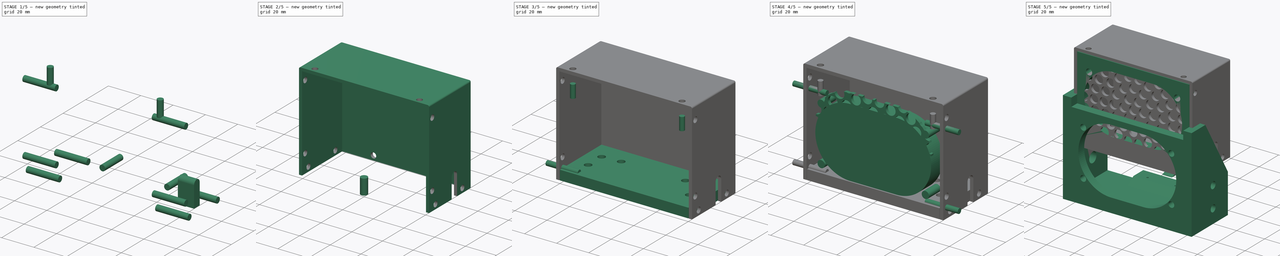
[diagram: build sequence overview — one tinted view per stage of 5, left to right]
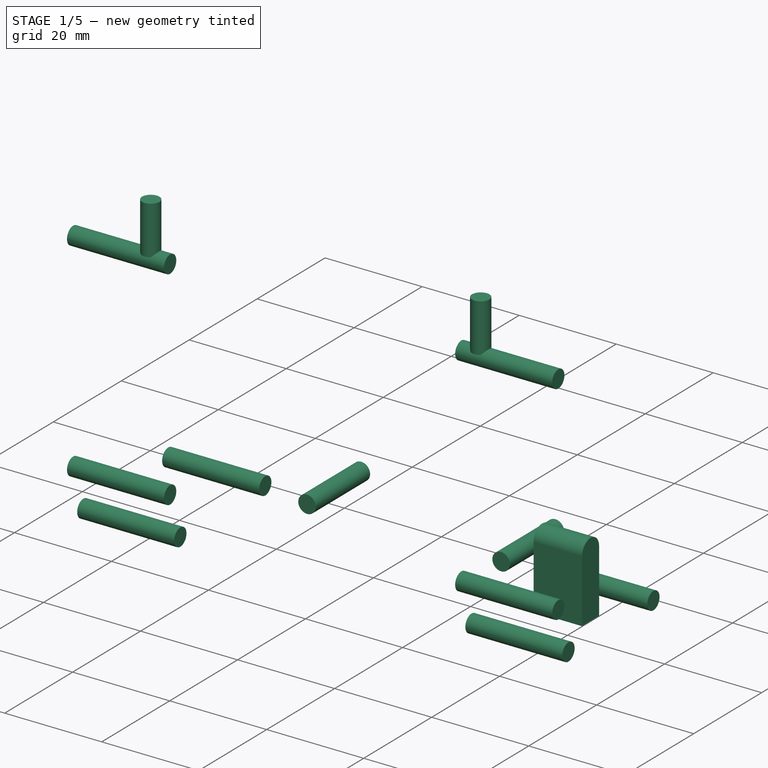
[diagram: stage 1 of 5 — iso view after this stage's code; geometry added in this stage tinted green]
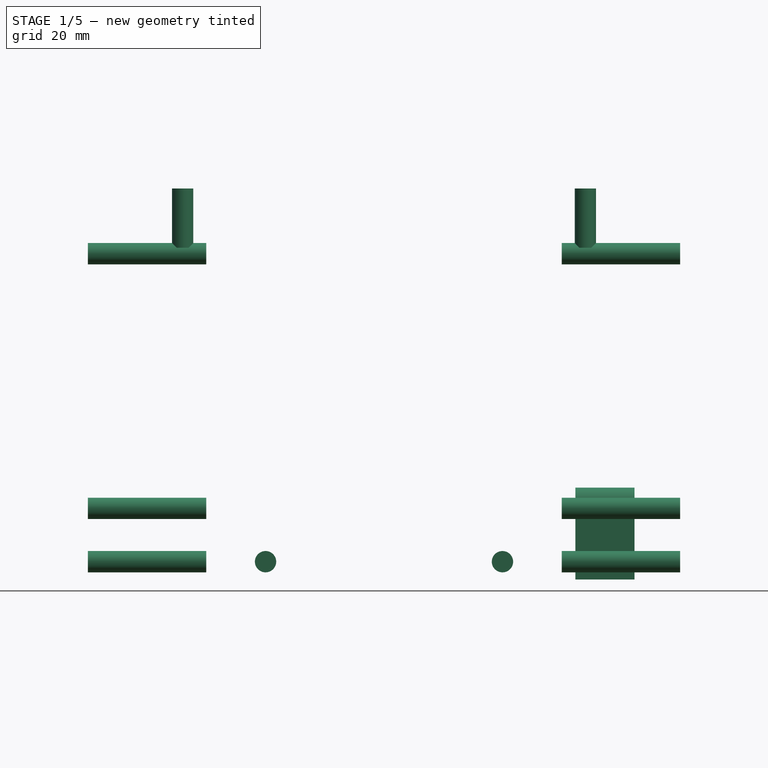
[diagram: stage 1 of 5 — front view after this stage's code; geometry added in this stage tinted green]
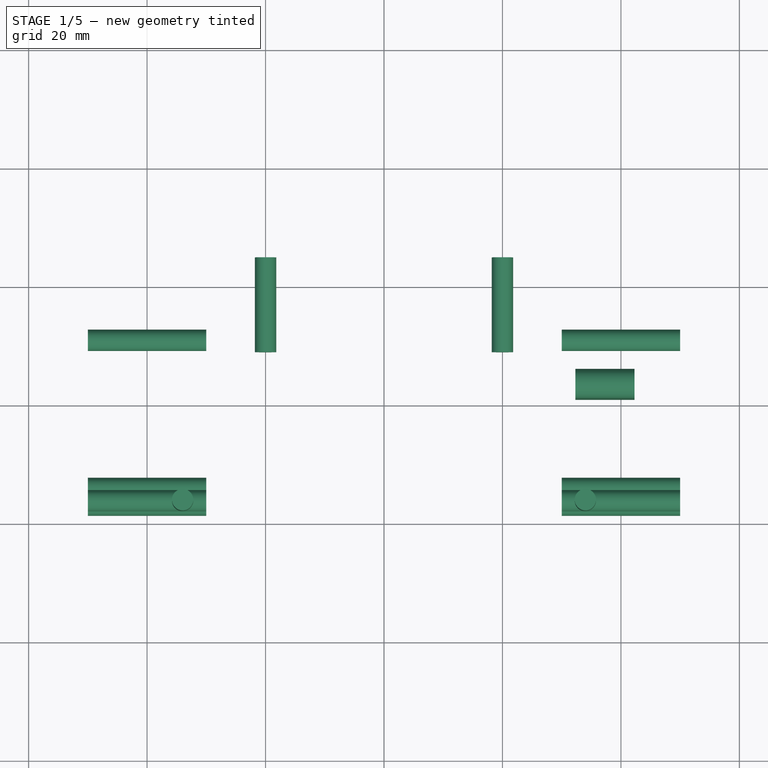
[diagram: stage 1 of 5 — top view after this stage's code; geometry added in this stage tinted green]
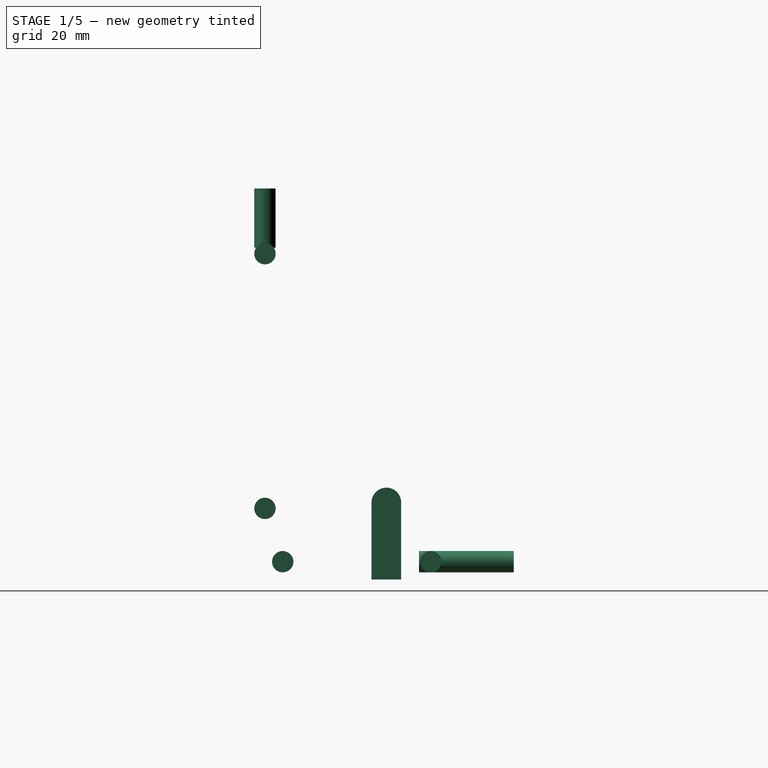
[diagram: stage 1 of 5 — right view after this stage's code; geometry added in this stage tinted green]
FCSTD DOCUMENT  (FreeCAD 0.19R)
Label: loud_speaker
License: All rights reserved
LicenseURL: http://en.wikipedia.org/wiki/All_rights_reserved
objects: Part::FeaturePython×14, Part::Cylinder×12, Sketcher::SketchObject×11, Part::Box×7, PartDesign::Pad×6, App::Part×5, Part::Cut×5, Part::MultiFuse×5, PartDesign::Body×4, PartDesign::Plane×3, PartDesign::AdditiveLoft×2, Spreadsheet::Sheet×1, Part::MultiCommon×1, Part::Feature×1, Part::Compound×1, Part::Fillet×1
note: 70 computed .brp shape members not serialized (recipe doc carries the construction recipe); baked Part::Feature solids carry a one-line shape summary decoded from their .brp

FEATURE [PartDesign::Body] Body002  label="speaker hole body"
  Group = -> [Sketch014,Pad004]
  Origin = -> Origin009
  Placement = pos=(0,0,27.5) rot=(0,0,1;0rad)
  Tip = -> Pad004
  expr: .Placement.Base.z = <<p>>.speaker_sz_y / 2
FEATURE [Part::Box] Box001  label="bottom side"
  AttacherType = Attacher::AttachEngine3D
  Height = 6
  Length = 80
  Placement = pos=(-40,0,0) rot=(0,0,1;0rad)
  Width = 37
  expr: .Placement.Base.x = -<<p>>.speaker_sz_x / 2
  expr: Height = <<p>>.speaker_wall
  expr: Width = <<p>>.under_speaker_sz_y
  expr: Length = <<p>>.speaker_sz_x
FEATURE [Part::Cylinder] Cylinder008  label="cover bottom side hole"
  Angle = 360
  AttacherType = Attacher::AttachEngine3D
  Height = 20
  Placement = pos=(-50,6,3) rot=(0,1,0;1.5708rad)
  Radius = 1.8
  expr: Radius = <<p>>.bolt_hole_r
  expr: .Placement.Base.z = <<p>>.speaker_wall / 2
  expr: .Placement.Base.x = -<<p>>.speaker_sz_x / 2 - Height / 2
FEATURE [Part::FeaturePython] Array008  label="cover bottom side holes array"  # Draft array (typed FeaturePython)
  Angle = 360
  ArrayType = 0
  Axis = (0,0,1)
  Base = -> Cylinder008
  Center = (0,0,0)
  Count = 4
  ExpandArray = false
  Fuse = false
  IntervalAxis = (0,0,0)
  IntervalX = (80,0,0)
  IntervalY = (0,25,0)
  IntervalZ = (0,0,100)
  NumberCircles = 3
  NumberPolar = 5
  NumberX = 2
  NumberY = 2
  NumberZ = 1
  PlacementList = 4 placements: [(-50,6,3),(-50,31,3),(30,6,3),(30,31,3)]
  RadialDistance = 50
  ScaleList = (4) [(1,1,1),(1,1,1),(1,1,1),(1,1,1)]
  Symmetry = 1
  TangentialDistance = 25
  expr: .IntervalX.x = <<p>>.speaker_sz_x
  expr: .IntervalY.y = <<bottom side>>.Width - 12mm
FEATURE [Part::Cylinder] Cylinder009  label="cover bottom hole"
  Angle = 360
  AttacherType = Attacher::AttachEngine3D
  Height = 16
  Placement = pos=(20,45,3) rot=(1,0,0;1.5708rad)
  Radius = 1.8
  expr: Radius = <<p>>.bolt_hole_r
  expr: .Placement.Base.y = <<bottom side>>.Width + Height / 2
  expr: .Placement.Base.z = <<p>>.speaker_wall / 2
FEATURE [Part::FeaturePython] Array009  label="cover bottom hole array"  # Draft array (typed FeaturePython)
  Angle = 360
  ArrayType = 0
  Axis = (0,0,1)
  Base = -> Cylinder009
  Center = (0,0,0)
  Count = 2
  ExpandArray = false
  Fuse = false
  IntervalAxis = (0,0,0)
  IntervalX = (40,0,0)
  IntervalY = (0,100,0)
  IntervalZ = (0,0,100)
  NumberCircles = 3
  NumberPolar = 5
  NumberX = 2
  NumberY = 1
  NumberZ = 1
  Placement = pos=(-40,0,0) rot=(0,0,1;0rad)
  PlacementList = 2 placements: [(20,45,3),(60,45,3)]
  RadialDistance = 50
  ScaleList = (2) [(1,1,1),(1,1,1)]
  Symmetry = 1
  TangentialDistance = 25
  expr: .Placement.Base.x = -<<p>>.speaker_sz_x / 2
  expr: .IntervalX.x = <<p>>.speaker_sz_x - 40mm
FEATURE [Part::Cylinder] Cylinder010  label="cover side hole"
  Angle = 360
  AttacherType = Attacher::AttachEngine3D
  Height = 20
  Placement = pos=(-50,3,6) rot=(0,1,0;1.5708rad)
  Radius = 1.8
  expr: Radius = <<p>>.bolt_hole_r
  expr: .Placement.Base.x = -<<p>>.speaker_sz_x / 2 - Height / 2
  expr: .Placement.Base.y = <<p>>.face_speaker_wall / 2
FEATURE [Part::FeaturePython] Array010  label="cover side holes array"  # Draft array (typed FeaturePython)
  Angle = 360
  ArrayType = 0
  Axis = (0,0,1)
  Base = -> Cylinder010
  Center = (0,0,0)
  Count = 4
  ExpandArray = false
  Fuse = false
  IntervalAxis = (0,0,0)
  IntervalX = (80,0,0)
  IntervalY = (0,100,0)
  IntervalZ = (0,0,43)
  NumberCircles = 3
  NumberPolar = 5
  NumberX = 2
  NumberY = 1
  NumberZ = 2
  Placement = pos=(0,0,6) rot=(0,0,1;0rad)
  PlacementList = 4 placements: [(-50,3,6),(-50,3,49),(30,3,6),(30,3,49)]
  RadialDistance = 50
  ScaleList = (4) [(1,1,1),(1,1,1),(1,1,1),(1,1,1)]
  Symmetry = 1
  TangentialDistance = 25
  expr: .IntervalX.x = <<p>>.speaker_sz_x
  expr: .IntervalZ.z = <<p>>.speaker_sz_y - 12mm
  expr: .Placement.Base.z = <<p>>.speaker_wall
FEATURE [Part::Cylinder] Cylinder011  label="cover vertical hole"
  Angle = 360
  AttacherType = Attacher::AttachEngine3D
  Height = 10
  Placement = pos=(6,0,50) rot=(0,0,1;0rad)
  Radius = 1.8
  expr: Radius = <<p>>.bolt_hole_r
  expr: .Placement.Base.z = <<p>>.speaker_sz_y - Height / 2
FEATURE [Part::FeaturePython] Array011  label="cover vertical hole array"  # Draft array (typed FeaturePython)
  Angle = 360
  ArrayType = 0
  Axis = (0,0,1)
  Base = -> Cylinder011
  Center = (0,0,0)
  Count = 2
  ExpandArray = false
  Fuse = false
  IntervalAxis = (0,0,0)
  IntervalX = (68,0,0)
  IntervalY = (0,100,0)
  IntervalZ = (0,0,100)
  NumberCircles = 3
  NumberPolar = 5
  NumberX = 2
  NumberY = 1
  NumberZ = 1
  Placement = pos=(-40,3,6) rot=(0,0,1;0rad)
  PlacementList = 2 placements: [(6,0,50),(74,0,50)]
  RadialDistance = 50
  ScaleList = (2) [(1,1,1),(1,1,1)]
  Symmetry = 1
  TangentialDistance = 25
  expr: .IntervalX.x = <<p>>.speaker_sz_x - 12mm
  expr: .Placement.Base.x = -<<p>>.speaker_sz_x / 2
  expr: .Placement.Base.y = <<p>>.face_speaker_wall / 2
  expr: .Placement.Base.z = <<p>>.speaker_wall
FEATURE [Sketcher::SketchObject] Sketch015
  FullyConstrained = true
  MapMode = 5
  Placement = pos=(42.3,0,0) rot=(0.57735,0.57735,0.57735;2.0944rad)
  expr: Constraints[7] = <<p>>.speaker_wall + 7mm
  sketch-geometry (4):
    g0: LineSegment StartX=26 StartY=0 StartZ=0 EndX=26 EndY=13 EndZ=0
    g1: LineSegment StartX=21 StartY=0 StartZ=0 EndX=21 EndY=13 EndZ=0
    g2: ArcOfCircle CenterX=23.5 CenterY=13 CenterZ=0 NormalX=0 NormalY=0 NormalZ=1 AngleXU=0 Radius=2.5 StartAngle=0 EndAngle=3.14159
    g3: LineSegment StartX=21 StartY=0 StartZ=0 EndX=26 EndY=0 EndZ=0
  constraints (11):
    c: PointOnObject(g0,g-1)
    c: Vertical(g0)
    c: PointOnObject(g1,g-1)
    c: Vertical(g1)
    c: Tangent(g2,g0) = -1.5708
    c: Tangent(g2,g1) = 1.5708
    c: DistanceX(g1,g0) = 5
    c: DistanceY(g0,g0) = 13
    c: Coincident(g3,g1)
    c: Coincident(g3,g0)
    c: DistanceX(g-1,g1) = 21
FEATURE [PartDesign::Pad] Pad005
  Direction = (1,1,1)
  Length = 10
  Length2 = 100
  Placement = pos=(42.3,0,0) rot=(0.57735,0.57735,0.57735;2.0944rad)
  Profile = -> Sketch015
  Reversed = true
  Type = 0
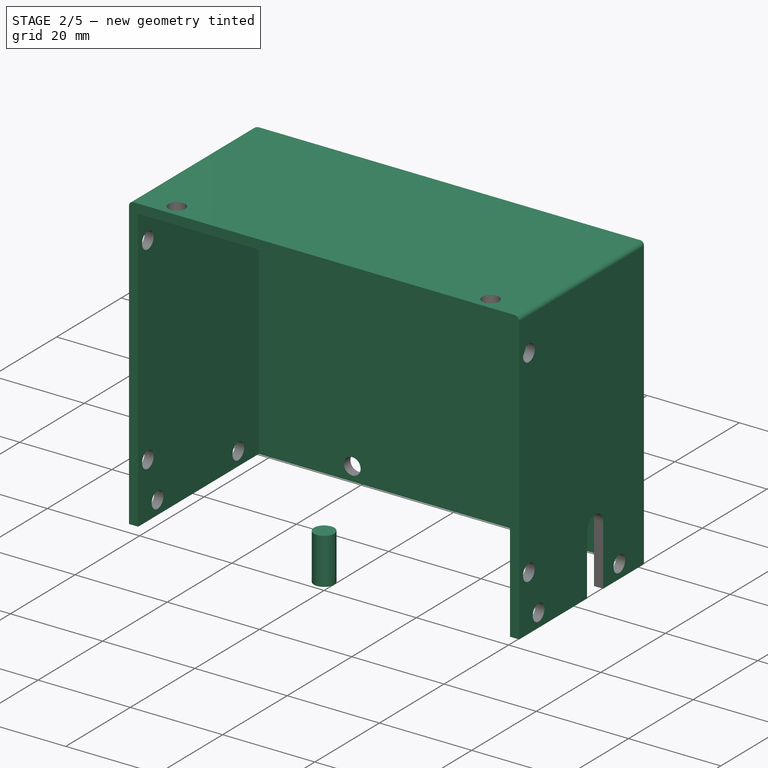
[diagram: stage 2 of 5 — iso view after this stage's code; geometry added in this stage tinted green]
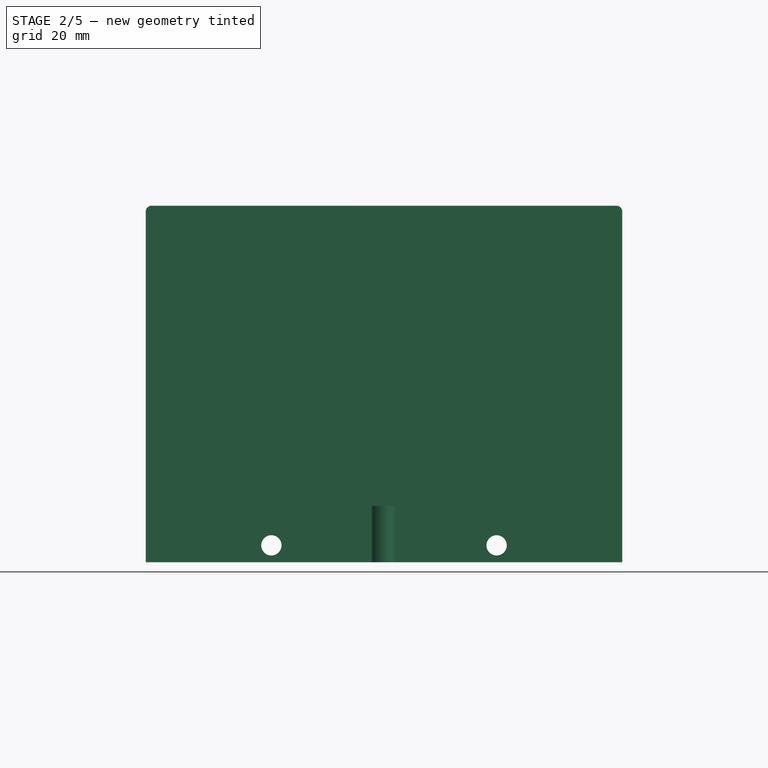
[diagram: stage 2 of 5 — front view after this stage's code; geometry added in this stage tinted green]
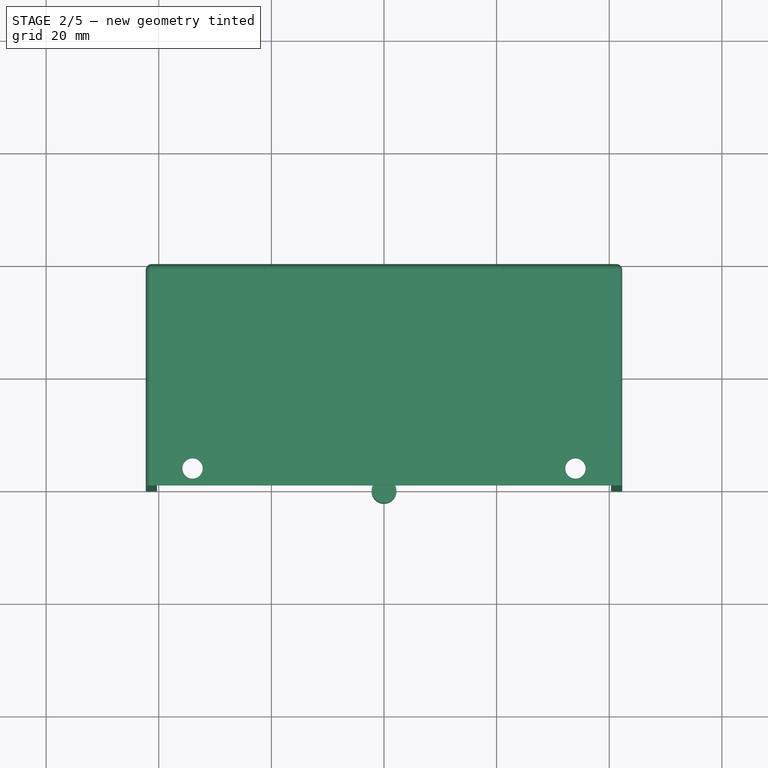
[diagram: stage 2 of 5 — top view after this stage's code; geometry added in this stage tinted green]
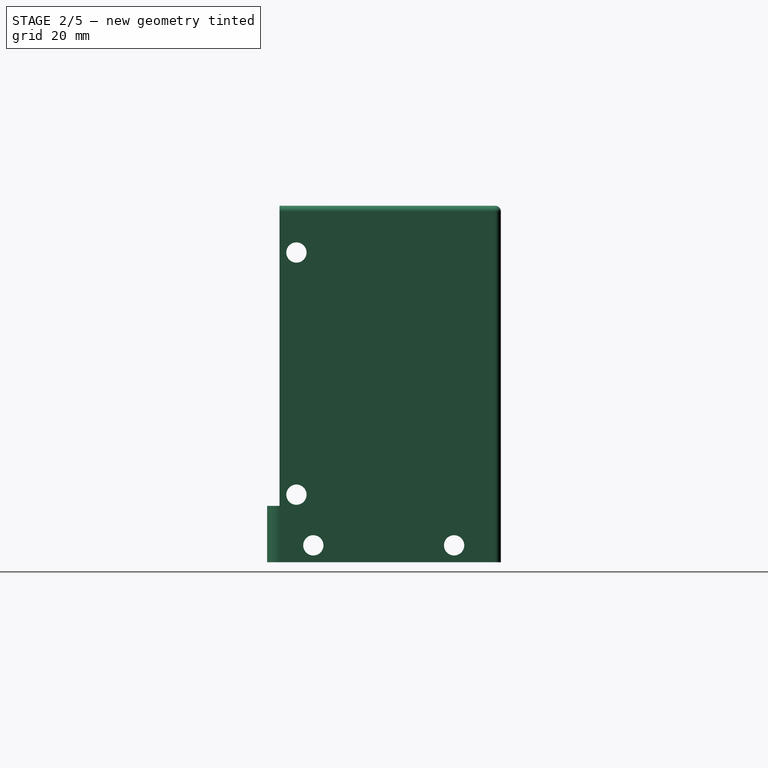
[diagram: stage 2 of 5 — right view after this stage's code; geometry added in this stage tinted green]
FEATURE [App::Part] Part001  label="ear"
  Group = -> [Cylinder,Sketch010,Sketch013,AdditiveLoft001,Cut]
  Origin = -> Origin005
FEATURE [App::Part] Part002  label="box part"
  Group = -> [Body]
  Origin = -> Origin006
FEATURE [Part::Box] Box  label="face wall"
  AttacherType = Attacher::AttachEngine3D
  Height = 55
  Length = 80
  Placement = pos=(-40,0,0) rot=(0,0,1;0rad)
  Width = 6
  expr: Length = <<p>>.speaker_sz_x
  expr: Width = <<p>>.face_speaker_wall
  expr: Height = <<p>>.speaker_sz_y
  expr: .Placement.Base.x = -<<p>>.speaker_sz_x / 2
FEATURE [Part::Cylinder] Cylinder007  label="bottom attachment hole"
  Angle = 360
  AttacherType = Attacher::AttachEngine3D
  Height = 10
  Radius = 2.2
  expr: Radius = <<p>>.inserter_hole_r
FEATURE [App::Part] Part003  label="simplified box part"
  Group = -> [Fusion001]
  Origin = -> Origin007
FEATURE [Part::Box] Box004  label="side wall cube"
  AttacherType = Attacher::AttachEngine3D
  Height = 61.3
  Length = 2
  Placement = pos=(-42.3,0,0) rot=(0,0,1;0rad)
  Width = 37.3
  expr: Height = <<p>>.speaker_sz_y + <<p>>.speaker_wall + <<p>>.cover_gap
  expr: Width = <<p>>.under_speaker_sz_y + <<p>>.cover_gap
  expr: Length = <<p>>.cover_wall
  expr: .Placement.Base.x = -<<face wall>>.Length / 2 - <<p>>.cover_wall - <<p>>.cover_gap
FEATURE [Part::Box] Box005  label="another side wall cube"
  AttacherType = Attacher::AttachEngine3D
  Height = 61.3
  Length = 2
  Placement = pos=(40.3,0,0) rot=(0,0,1;0rad)
  Width = 37.3
  expr: .Placement.Base.x = <<face wall>>.Length / 2 + <<p>>.cover_gap
  expr: Length = <<p>>.cover_wall
  expr: Width = <<p>>.under_speaker_sz_y + <<p>>.cover_gap
  expr: Height = <<p>>.speaker_sz_y + <<p>>.speaker_wall + <<p>>.cover_gap
FEATURE [Part::Box] Box006  label="top cover wall cube"
  AttacherType = Attacher::AttachEngine3D
  Height = 2
  Length = 84.6
  Placement = pos=(-42.3,0,61.3) rot=(0,0,1;0rad)
  Width = 37.3
  expr: Height = <<p>>.cover_wall
  expr: Width = <<p>>.under_speaker_sz_y + <<p>>.cover_gap
  expr: .Placement.Base.x = -Length / 2
  expr: .Placement.Base.z = <<p>>.speaker_sz_y + <<p>>.speaker_wall + <<p>>.cover_gap
  expr: Length = <<face wall>>.Length + 2 * (<<p>>.cover_wall + <<p>>.cover_gap)
FEATURE [Part::Box] Box007  label="back cover wall cube"
  AttacherType = Attacher::AttachEngine3D
  Height = 63.3
  Length = 84.6
  Placement = pos=(-42.3,37.3,0) rot=(0,0,1;0rad)
  Width = 2
  expr: Length = <<face wall>>.Length + 2 * (<<p>>.cover_wall + <<p>>.cover_gap)
  expr: .Placement.Base.x = -Length / 2
  expr: Width = <<p>>.cover_wall
  expr: Height = <<p>>.speaker_sz_y + <<p>>.speaker_wall + <<p>>.cover_wall + <<p>>.cover_gap
  expr: .Placement.Base.y = <<p>>.under_speaker_sz_y + <<p>>.cover_gap
FEATURE [Part::MultiFuse] Fusion003004  label="cover fusion"
  Shapes = -> [Box004,Box005,Box007,Box006]
FEATURE [PartDesign::Body] Body003  label="wire hole body"
  Group = -> [Sketch015,Pad005]
  Origin = -> Origin012
  Tip = -> Pad005
FEATURE [Part::MultiFuse] Fusion003005  label="cover extraction"
  Shapes = -> [Array008,Array009,Array010,Array011,Body003]
FEATURE [Part::Cut] Cut004  label="cover body"
  Base = -> Fusion003004
  Tool = -> Fusion003005
FEATURE [Part::Fillet] Fillet  label="cover body fillet"
  Base = -> Cut004
  Edges = 7 edges r=1: [Edge15,Edge17,Edge18,Edge39,Edge42,Edge43,Edge44]
FEATURE [App::Part] Part004  label="simplified cover part"
  Group = -> [Fillet]
  Origin = -> Origin010
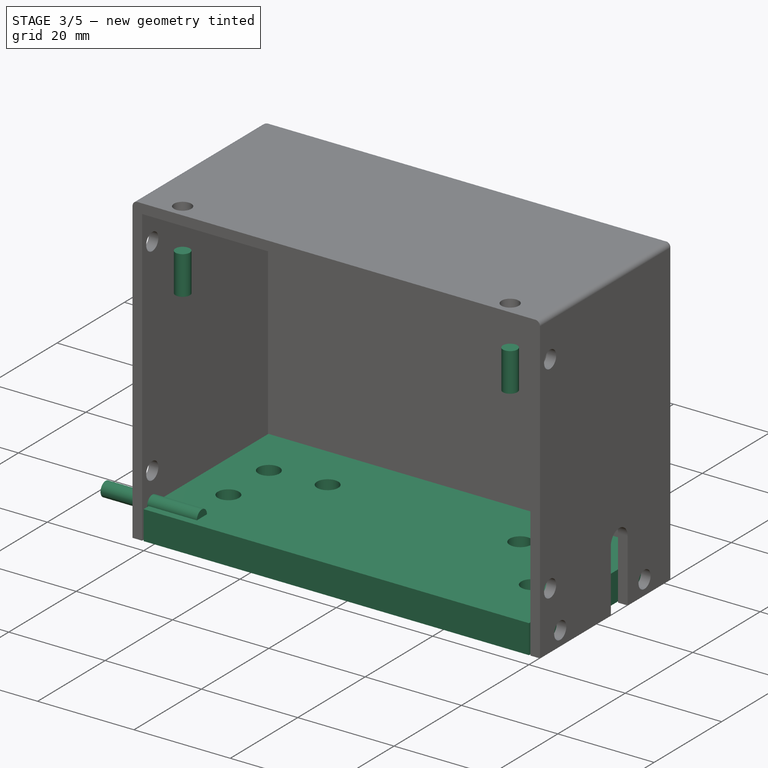
[diagram: stage 3 of 5 — iso view after this stage's code; geometry added in this stage tinted green]
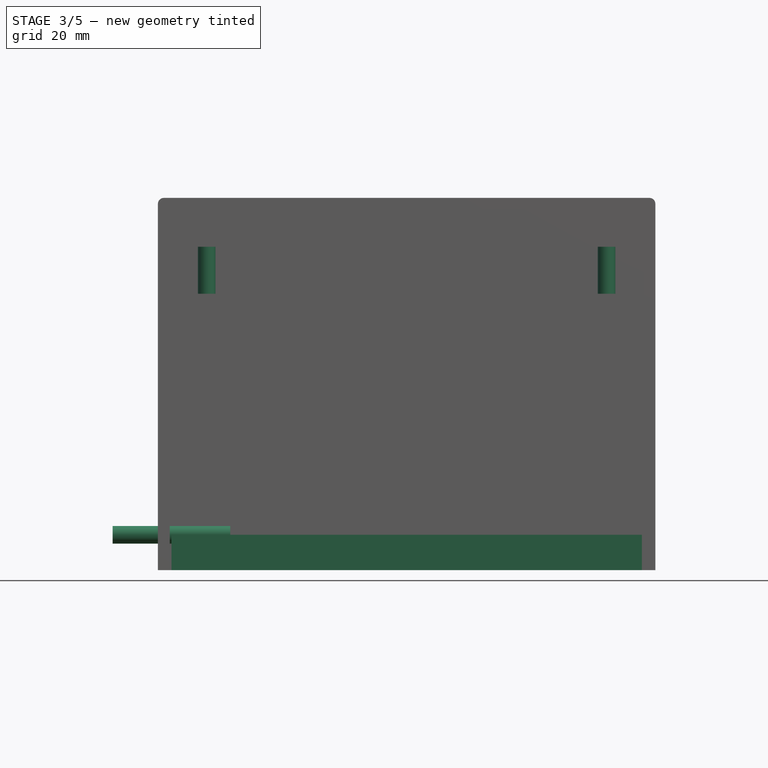
[diagram: stage 3 of 5 — front view after this stage's code; geometry added in this stage tinted green]
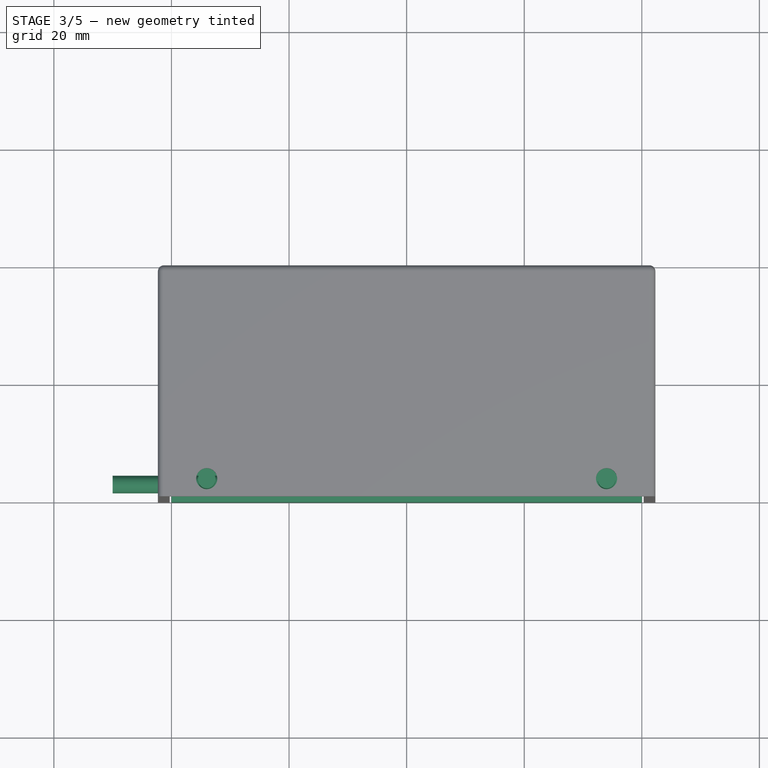
[diagram: stage 3 of 5 — top view after this stage's code; geometry added in this stage tinted green]
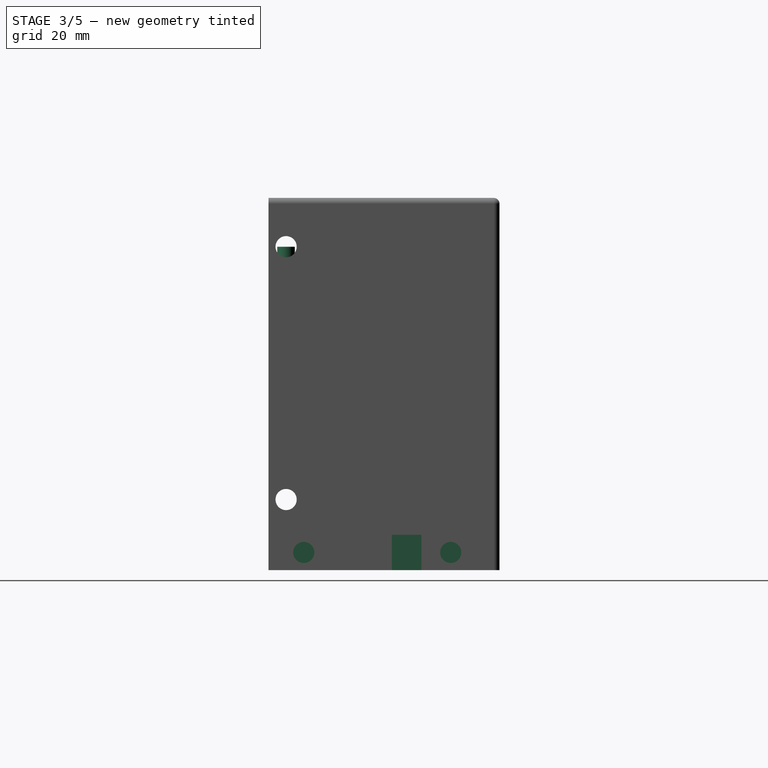
[diagram: stage 3 of 5 — right view after this stage's code; geometry added in this stage tinted green]
FEATURE [Part::Cylinder] Cylinder003  label="side hole"
  Angle = 360
  AttacherType = Attacher::AttachEngine3D
  Height = 20
  Placement = pos=(-50,3,6) rot=(0,1,0;1.5708rad)
  Radius = 1.5
  expr: .Placement.Base.y = <<p>>.face_speaker_wall / 2
  expr: .Placement.Base.x = -<<p>>.speaker_sz_x / 2 - Height / 2
  expr: Radius = <<p>>.side_hole_r
FEATURE [Part::Cylinder] Cylinder004  label="vertical hole"
  Angle = 360
  AttacherType = Attacher::AttachEngine3D
  Height = 8
  Placement = pos=(6,0,47) rot=(0,0,1;0rad)
  Radius = 1.5
  expr: .Placement.Base.z = <<p>>.speaker_sz_y - Height
  expr: Radius = <<p>>.side_hole_r
FEATURE [Part::FeaturePython] Array004  label="vertical hole array"  # Draft array (typed FeaturePython)
  Angle = 360
  ArrayType = 0
  Axis = (0,0,1)
  Base = -> Cylinder004
  Center = (0,0,0)
  Count = 2
  ExpandArray = false
  Fuse = false
  IntervalAxis = (0,0,0)
  IntervalX = (68,0,0)
  IntervalY = (0,100,0)
  IntervalZ = (0,0,100)
  NumberCircles = 3
  NumberPolar = 5
  NumberX = 2
  NumberY = 1
  NumberZ = 1
  Placement = pos=(-40,3,0) rot=(0,0,1;0rad)
  PlacementList = 2 placements: [(6,0,47),(74,0,47)]
  RadialDistance = 50
  ScaleList = (2) [(1,1,1),(1,1,1)]
  Symmetry = 1
  TangentialDistance = 25
  expr: .Placement.Base.y = <<p>>.face_speaker_wall / 2
  expr: .Placement.Base.x = -<<p>>.speaker_sz_x / 2
  expr: .IntervalX.x = <<p>>.speaker_sz_x - 12mm
FEATURE [Part::Feature] Fusion003001  label="amplifier holder"
  Placement = pos=(14,17,4) rot=(0,0,1;1.5708rad)
  shape: bbox 50 x 17.5 x 7.6 mm, 64 faces (baked)
  expr: .Placement.Base.z = <<p>>.speaker_wall - 2mm
FEATURE [Part::Cylinder] Cylinder005  label="bottom side hole"
  Angle = 360
  AttacherType = Attacher::AttachEngine3D
  Height = 20
  Placement = pos=(-50,6,3) rot=(0,1,0;1.5708rad)
  Radius = 1.5
  expr: .Placement.Base.x = -<<p>>.speaker_sz_x / 2 - Height / 2
  expr: .Placement.Base.z = <<p>>.speaker_wall / 2
  expr: Radius = <<p>>.side_hole_r
FEATURE [Part::FeaturePython] Array005  label="bottom side holes array"  # Draft array (typed FeaturePython)
  Angle = 360
  ArrayType = 0
  Axis = (0,0,1)
  Base = -> Cylinder005
  Center = (0,0,0)
  Count = 4
  ExpandArray = false
  Fuse = false
  IntervalAxis = (0,0,0)
  IntervalX = (80,0,0)
  IntervalY = (0,25,0)
  IntervalZ = (0,0,100)
  NumberCircles = 3
  NumberPolar = 5
  NumberX = 2
  NumberY = 2
  NumberZ = 1
  PlacementList = 4 placements: [(-50,6,3),(-50,31,3),(30,6,3),(30,31,3)]
  RadialDistance = 50
  ScaleList = (4) [(1,1,1),(1,1,1),(1,1,1),(1,1,1)]
  Symmetry = 1
  TangentialDistance = 25
  expr: .IntervalY.y = <<bottom side>>.Width - 12mm
  expr: .IntervalX.x = <<p>>.speaker_sz_x
FEATURE [Part::Cylinder] Cylinder006  label="bottom hole"
  Angle = 360
  AttacherType = Attacher::AttachEngine3D
  Height = 16
  Placement = pos=(20,45,3) rot=(1,0,0;1.5708rad)
  Radius = 1.5
  expr: .Placement.Base.z = <<p>>.speaker_wall / 2
  expr: .Placement.Base.y = <<bottom side>>.Width + Height / 2
  expr: Radius = <<p>>.side_hole_r
FEATURE [Part::FeaturePython] Array006  label="bottom hole array"  # Draft array (typed FeaturePython)
  Angle = 360
  ArrayType = 0
  Axis = (0,0,1)
  Base = -> Cylinder006
  Center = (0,0,0)
  Count = 2
  ExpandArray = false
  Fuse = false
  IntervalAxis = (0,0,0)
  IntervalX = (40,0,0)
  IntervalY = (0,100,0)
  IntervalZ = (0,0,100)
  NumberCircles = 3
  NumberPolar = 5
  NumberX = 2
  NumberY = 1
  NumberZ = 1
  Placement = pos=(-40,0,0) rot=(0,0,1;0rad)
  PlacementList = 2 placements: [(20,45,3),(60,45,3)]
  RadialDistance = 50
  ScaleList = (2) [(1,1,1),(1,1,1)]
  Symmetry = 1
  TangentialDistance = 25
  expr: .IntervalX.x = <<p>>.speaker_sz_x - 40mm
  expr: .Placement.Base.x = -<<p>>.speaker_sz_x / 2
FEATURE [Part::FeaturePython] Array007  label="bottom attachment hole array"  # Draft array (typed FeaturePython)
  Angle = 360
  ArrayType = 0
  Axis = (0,0,1)
  Base = -> Cylinder007
  Center = (0,0,0)
  Count = 4
  ExpandArray = false
  Fuse = false
  IntervalAxis = (0,0,0)
  IntervalX = (63,0,0)
  IntervalY = (0,12,0)
  IntervalZ = (0,0,100)
  NumberCircles = 3
  NumberPolar = 5
  NumberX = 2
  NumberY = 2
  NumberZ = 1
  Placement = pos=(-31.5,13,0) rot=(0,0,1;0rad)
  PlacementList = 4 placements: [(0,0,0),(0,12,0),(63,0,0),(63,12,0)]
  RadialDistance = 50
  ScaleList = (4) [(1,1,1),(1,1,1),(1,1,1),(1,1,1)]
  Symmetry = 1
  TangentialDistance = 25
  expr: .Placement.Base.x = -.IntervalX.x / 2
  expr: .IntervalY.y = <<p>>.attachment_step_y
  expr: .IntervalX.x = <<p>>.attachment_step_z * 9
FEATURE [Part::FeaturePython] Point  # WARN: FeaturePython — macro-defined, semantics opaque (R4)
  Placement = pos=(-20,26,0) rot=(0,0,1;0rad)
  X = -20
  Y = 26
  Z = 0
FEATURE [Part::FeaturePython] Point001  # WARN: FeaturePython — macro-defined, semantics opaque (R4)
  Placement = pos=(20,26,0) rot=(0,0,1;0rad)
  X = 20
  Y = 26
  Z = 0
FEATURE [Part::Compound] Compound  label="amplifier point compound"
  Links = -> [Point,Point001]
FEATURE [Part::FeaturePython] PointArray  label="amplifier hole array"  # Draft array (typed FeaturePython)
  Base = -> Cylinder007
  Count = 0
  PointObject = -> Compound
FEATURE [Part::MultiFuse] Fusion003003  label="bottom extract fusion"
  Shapes = -> [Array006,Array005,Array007,PointArray]
FEATURE [Part::Cut] Cut003  label="bottom cut"
  Base = -> Box001
  Tool = -> Fusion003003
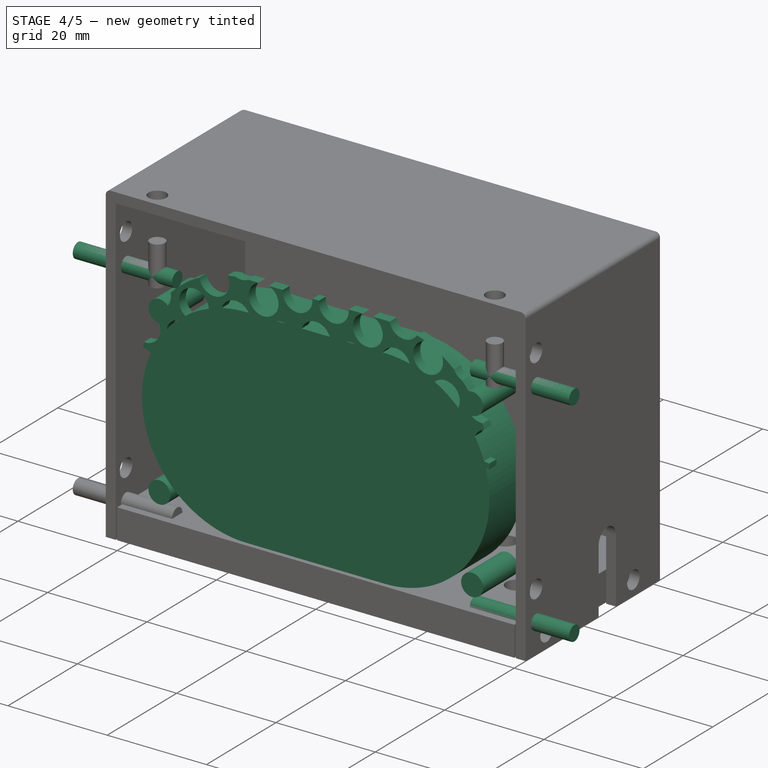
[diagram: stage 4 of 5 — iso view after this stage's code; geometry added in this stage tinted green]
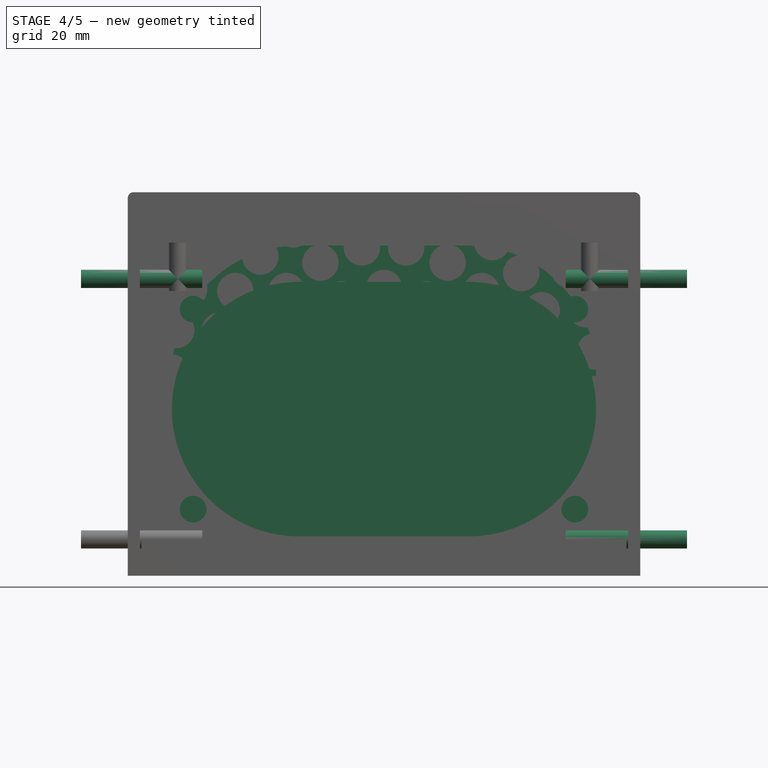
[diagram: stage 4 of 5 — front view after this stage's code; geometry added in this stage tinted green]
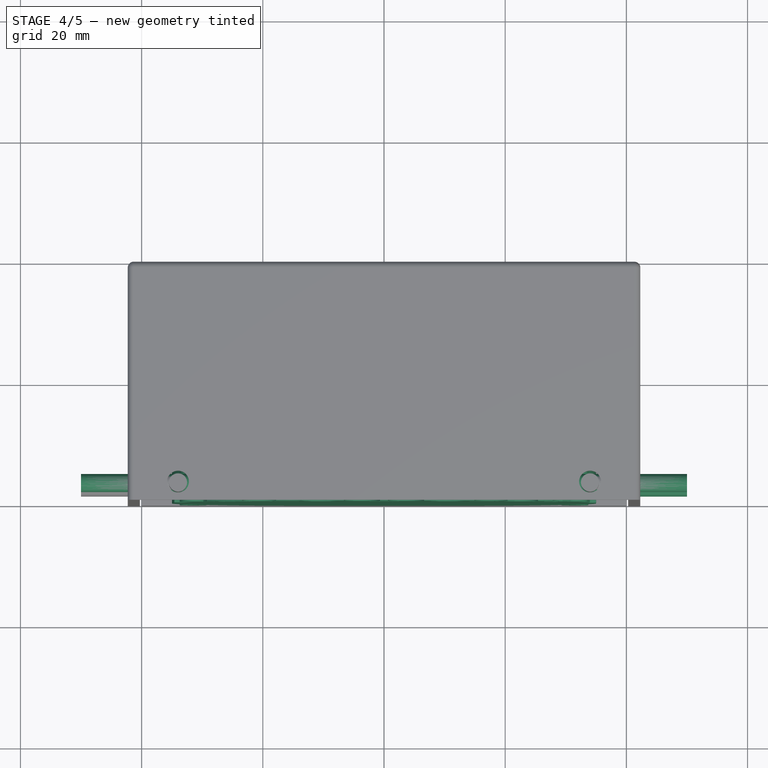
[diagram: stage 4 of 5 — top view after this stage's code; geometry added in this stage tinted green]
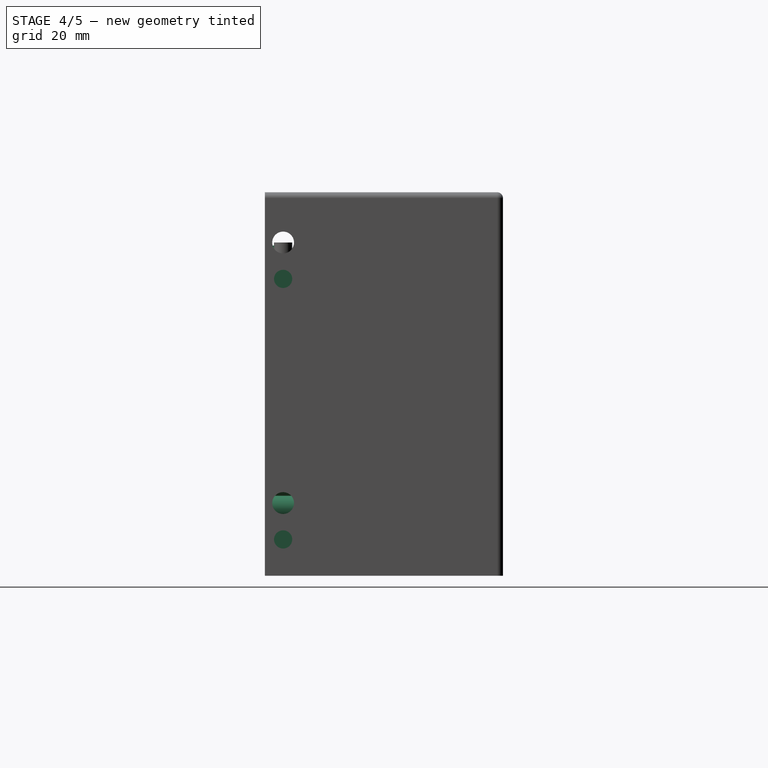
[diagram: stage 4 of 5 — right view after this stage's code; geometry added in this stage tinted green]
FEATURE [Part::Cylinder] Cylinder001  label="face wall hole"
  Angle = 360
  AttacherType = Attacher::AttachEngine3D
  Height = 10
  Placement = pos=(0,0,0) rot=(-1,0,0;1.5708rad)
  Radius = 2.2
  expr: Radius = <<p>>.inserter_hole_r
FEATURE [Part::FeaturePython] Array  label="face wall hole array"  # Draft array (typed FeaturePython)
  Angle = 360
  ArrayType = 0
  Axis = (0,0,1)
  Base = -> Cylinder001
  Center = (0,0,0)
  Count = 4
  ExpandArray = false
  Fuse = false
  IntervalAxis = (0,0,0)
  IntervalX = (63,0,0)
  IntervalY = (0,100,0)
  IntervalZ = (0,0,33)
  NumberCircles = 3
  NumberPolar = 5
  NumberX = 2
  NumberY = 1
  NumberZ = 2
  Placement = pos=(-31.5,0,11) rot=(0,0,1;0rad)
  PlacementList = 4 placements: [(0,0,0),(0,0,33),(63,0,0),(63,0,33)]
  RadialDistance = 50
  ScaleList = (4) [(1,1,1),(1,1,1),(1,1,1),(1,1,1)]
  Symmetry = 1
  TangentialDistance = 25
  expr: .IntervalX.x = <<p>>.speaker_hole_dist_x
  expr: .IntervalZ.z = <<p>>.speaker_hole_dist_y
  expr: .Placement.Base.x = -<<p>>.speaker_hole_dist_x / 2
  expr: .Placement.Base.z = (<<p>>.speaker_sz_y - <<p>>.speaker_hole_dist_y) / 2
FEATURE [Sketcher::SketchObject] Sketch014  label="face speaker hole"
  FullyConstrained = false
  MapMode = 5
  Placement = pos=(0,0,0) rot=(1,0,0;1.5708rad)
  Support = -> [XZ_Plane009]
  sketch-geometry (5):
    g0: ArcOfCircle CenterX=14 CenterY=2e-16 CenterZ=0 NormalX=0 NormalY=0 NormalZ=1 AngleXU=0 Radius=21 StartAngle=4.71239 EndAngle=7.85398
    g1: ArcOfCircle CenterX=-14 CenterY=2.7167e-12 CenterZ=0 NormalX=0 NormalY=0 NormalZ=1 AngleXU=0 Radius=21 StartAngle=1.5708 EndAngle=4.71239
    g2: LineSegment StartX=14 StartY=21 StartZ=0 EndX=-14 EndY=21 EndZ=0
    g3: LineSegment StartX=14 StartY=-21 StartZ=0 EndX=-14 EndY=-21 EndZ=0
    g4: GeomPoint X=-35 Y=0 Z=0
  constraints (8):
    c: Tangent(g0,g3) = 1.5708
    c: Tangent(g0,g2) = -1.5708
    c: Tangent(g2,g1) = -1.5708
    c: Tangent(g3,g1) = 1.5708
    c: Symmetric(g1,g0,g-2)
    c: Symmetric(g0,g0,g-1)
    c: PointOnObject(g4,g1)
    c: DistanceY(g-1,g4) = 0
FEATURE [PartDesign::Pad] Pad004
  Direction = (1,1,1)
  Length = 10
  Length2 = 100
  Placement = pos=(0,0,0) rot=(1,0,0;1.5708rad)
  Profile = -> Sketch014
  Reversed = true
  Type = 0
FEATURE [Part::Box] Box003  label="speaker mesh"
  AttacherType = Attacher::AttachEngine3D
  Height = 55
  Length = 80
  Placement = pos=(-40,0,0) rot=(0,0,1;0rad)
  Width = 2
  expr: .Placement.Base.x = -<<p>>.speaker_sz_x / 2
  expr: Height = <<p>>.speaker_sz_y
  expr: Width = <<p>>.speaker_mesh_wall
  expr: Length = <<p>>.speaker_sz_x
FEATURE [Part::Cylinder] Cylinder002  label="mesh hole"
  Angle = 360
  AttacherType = Attacher::AttachEngine3D
  Height = 10
  Radius = 3
FEATURE [Part::FeaturePython] Array002  label="mesh hole array"  # Draft array (typed FeaturePython)
  Angle = 360
  ArrayType = 2
  Axis = (0,0,1)
  Base = -> Cylinder002
  Center = (0,0,0)
  Count = 93
  ExpandArray = false
  Fuse = false
  IntervalAxis = (0,0,0)
  IntervalX = (50,0,0)
  IntervalY = (0,50,0)
  IntervalZ = (0,0,50)
  LinkTransform = true
  NumberCircles = 6
  NumberPolar = 5
  NumberX = 2
  NumberY = 2
  NumberZ = 1
  Placement = pos=(0,0,27.5) rot=(1,0,0;-1.5708rad)
  PlacementList = 93 placements: [(0,0,0),(-7,0,0),(-3.5,-6.06218,0),(3.5,-6.06218,0),(7,-8.57253e-16,0),(3.5,6.06218,0),(-3.5,6.06218,0),(-14,0,0),(-12.1244,-7,0),(-7,-12.1244,0),(-3.55271e-15,-14,0),(7,-12.1244,0),(12.1244,-7,0),(14,-1.71451e-15,0),(12.1244,7,0),(7,12.1244,0),(3.55271e-15,14,0),(-7,12.1244,0),(-12.1244,7,0),(-21,0,0),(-19.7335,-7.18242,0),(-16.0869,-13.4985,0),(-10.5,-18.1865,0),(-3.64661,-20.681,0),+69 more]
  RadialDistance = 7
  ScaleList = (93) [(1,1,1),(1,1,1),(1,1,1),(1,1,1),(1,1,1),(1,1,1),(1,1,1),(1,1,1),(1,1,1),(1,1,1),(1,1,1),(1,1,1),(1,1,1),(1,1,1),(1,1,1),(1,1,1),(1,1,1),(1,1,1),+75 more]
  Symmetry = 1
  TangentialDistance = 7
  expr: .Placement.Base.z = <<p>>.speaker_sz_y / 2
FEATURE [Part::Cut] Cut002  label="speaker cut"
  Base = -> Box003
  Tool = -> Array002
FEATURE [Part::MultiCommon] Common  label="speaker mesh intersection"
  Placement = pos=(0,0,6) rot=(0,0,1;0rad)
  Shapes = -> [Body002,Cut002]
  expr: .Placement.Base.z = <<p>>.speaker_wall
FEATURE [Part::FeaturePython] Array003  label="side holes array"  # Draft array (typed FeaturePython)
  Angle = 360
  ArrayType = 0
  Axis = (0,0,1)
  Base = -> Cylinder003
  Center = (0,0,0)
  Count = 4
  ExpandArray = false
  Fuse = false
  IntervalAxis = (0,0,0)
  IntervalX = (80,0,0)
  IntervalY = (0,100,0)
  IntervalZ = (0,0,43)
  NumberCircles = 3
  NumberPolar = 5
  NumberX = 2
  NumberY = 1
  NumberZ = 2
  PlacementList = 4 placements: [(-50,3,6),(-50,3,49),(30,3,6),(30,3,49)]
  RadialDistance = 50
  ScaleList = (4) [(1,1,1),(1,1,1),(1,1,1),(1,1,1)]
  Symmetry = 1
  TangentialDistance = 25
  expr: .IntervalZ.z = <<p>>.speaker_sz_y - 12mm
  expr: .IntervalX.x = <<p>>.speaker_sz_x
FEATURE [Part::MultiFuse] Fusion  label="speaker wall extract fusion"
  Shapes = -> [Body002,Array,Array003,Array004]
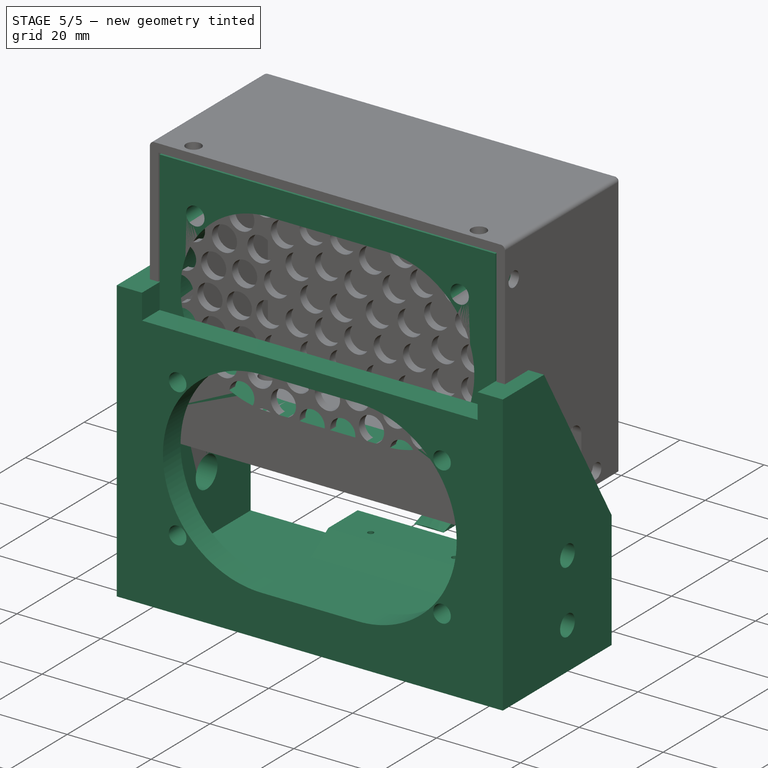
[diagram: stage 5 of 5 — iso view after this stage's code; geometry added in this stage tinted green]
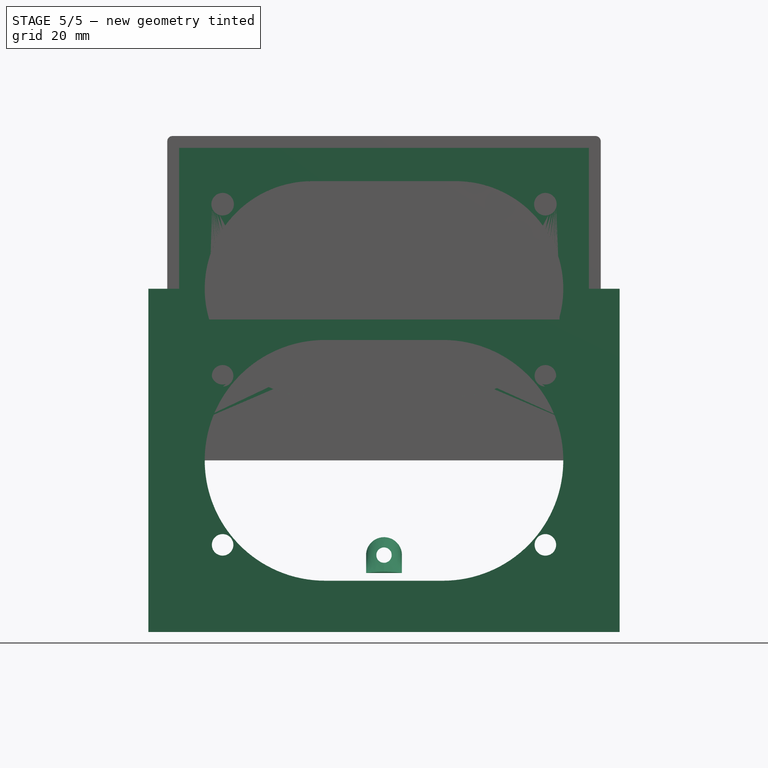
[diagram: stage 5 of 5 — front view after this stage's code; geometry added in this stage tinted green]
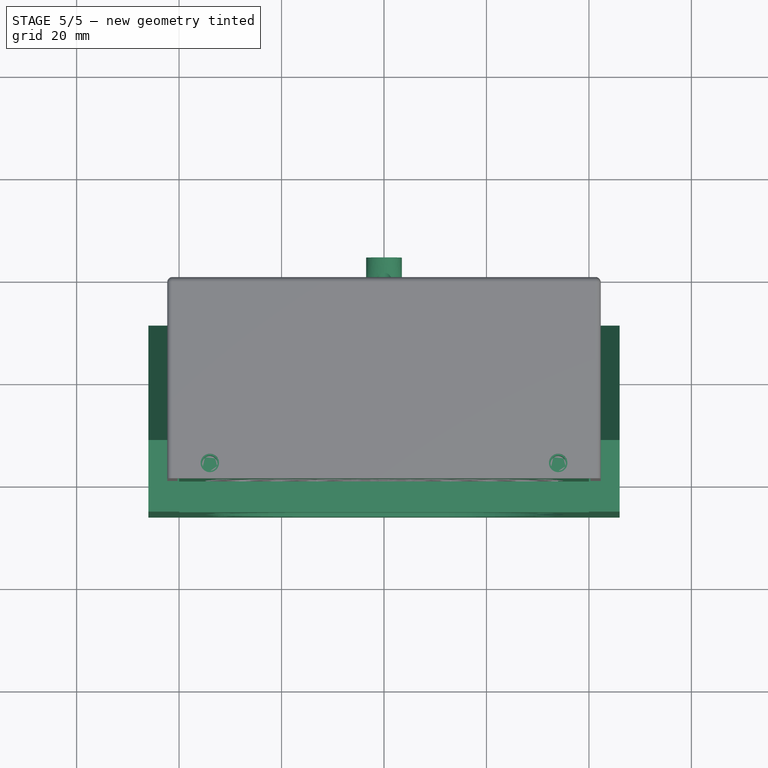
[diagram: stage 5 of 5 — top view after this stage's code; geometry added in this stage tinted green]
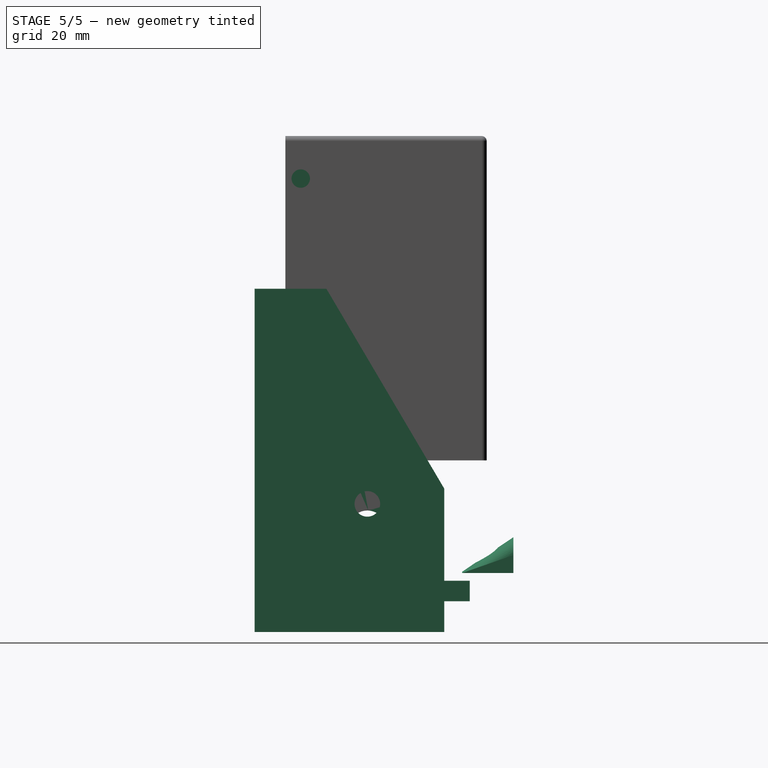
[diagram: stage 5 of 5 — right view after this stage's code; geometry added in this stage tinted green]
FEATURE [Sketcher::SketchObject] Sketch  label="face speaker wall"
  FullyConstrained = true
  MapMode = 5
  Placement = pos=(0,0,0) rot=(1,0,0;1.5708rad)
  Support = -> [XZ_Plane]
  expr: Constraints[19] = <<p>>.speaker_sz_y
  expr: Constraints[18] = <<p>>.speaker_sz_x
  expr: Constraints[13] = <<p>>.speaker_hole_dist_y
  expr: Constraints[12] = <<p>>.speaker_hole_dist_x
  expr: Constraints[11] = <<p>>.speaker_hole_dist_y
  expr: Constraints[10] = <<p>>.speaker_hole_dist_x
  sketch-geometry (13):
    g0: LineSegment StartX=-40 StartY=27.5 StartZ=0 EndX=40 EndY=27.5 EndZ=0
    g1: LineSegment StartX=40 StartY=27.5 StartZ=0 EndX=40 EndY=-27.5 EndZ=0
    g2: LineSegment StartX=40 StartY=-27.5 StartZ=0 EndX=-40 EndY=-27.5 EndZ=0
    g3: LineSegment StartX=-40 StartY=-27.5 StartZ=0 EndX=-40 EndY=27.5 EndZ=0
    g4: Circle CenterX=-31.5 CenterY=16.5 CenterZ=0 NormalX=0 NormalY=0 NormalZ=1 AngleXU=0 Radius=2.1
    g5: Circle CenterX=31.5 CenterY=16.5 CenterZ=0 NormalX=0 NormalY=0 NormalZ=1 AngleXU=0 Radius=2.1
    g6: Circle CenterX=31.5 CenterY=-16.5 CenterZ=0 NormalX=0 NormalY=0 NormalZ=1 AngleXU=0 Radius=2.1
    g7: Circle CenterX=-31.5 CenterY=-16.5 CenterZ=0 NormalX=0 NormalY=0 NormalZ=1 AngleXU=0 Radius=2.1
    g8: ArcOfCircle CenterX=11.5 CenterY=-1.3e-15 CenterZ=0 NormalX=0 NormalY=0 NormalZ=1 AngleXU=0 Radius=23.5 StartAngle=4.71239 EndAngle=7.85398
    g9: ArcOfCircle CenterX=-11.5 CenterY=-2.98e-14 CenterZ=0 NormalX=0 NormalY=0 NormalZ=1 AngleXU=0 Radius=23.5 StartAngle=1.5708 EndAngle=4.71239
    g10: LineSegment StartX=11.5 StartY=23.5 StartZ=0 EndX=-11.5 EndY=23.5 EndZ=0
    g11: LineSegment StartX=11.5 StartY=-23.5 StartZ=0 EndX=-11.5 EndY=-23.5 EndZ=0
    g12: GeomPoint X=-35 Y=0 Z=0
  constraints (30):
    c: Coincident(g0,g1)
    c: Coincident(g1,g2)
    c: Coincident(g2,g3)
    c: Coincident(g3,g0)
    c: Horizontal(g2)
    c: Vertical(g1)
    c: Radius(g4) = 2.1
    c: Equal(g4,g5)
    c: Equal(g5,g6)
    c: Equal(g6,g7)
    c: DistanceX(g4,g5) = 63
    c: DistanceY(g7,g4) = 33
    c: DistanceX(g7,g6) = 63
    c: DistanceY(g6,g5) = 33
    c: Symmetric(g0,g0,g-2)
    c: Symmetric(g4,g5,g-2)
    c: Symmetric(g4,g7,g-1)
    c: Symmetric(g0,g2,g-1)
    c: DistanceX(g0,g0) = 80
    c: DistanceY(g3,g3) = 55
    c: Tangent(g8,g11) = 1.5708
    c: Tangent(g8,g10) = -1.5708
    c: Tangent(g10,g9) = -1.5708
    c: Tangent(g11,g9) = 1.5708
    c: Symmetric(g9,g8,g-2)
    c: Symmetric(g8,g8,g-1)
    c: PointOnObject(g12,g9)
    c: DistanceY(g-1,g12) = 0
    c: DistanceX(g0,g12) = 5
    c: DistanceY(g8,g0) = 4
FEATURE [Spreadsheet::Sheet] Spreadsheet  label="p"
  cells = A1=alias; B1(alias)=value; A2=speaker_hole_dist_x; B2(speaker_hole_dist_x)==63mm; A3=speaker_hole_dist_y; B3(speaker_hole_dist_y)==33mm; A4=speaker_sz_x; B4(speaker_sz_x)==80mm; A5=speaker_sz_y; B5(speaker_sz_y)==55mm; A6=speaker_wall; B6(speaker_wall)==6mm; A7=face_speaker_wall; B7(face_speaker_wall)==6mm; A8=speaker_mesh_wall; B8(speaker_mesh_wall)==2mm; A9=speaker_free_space_sz_y; B9(speaker_free_space_sz_y)==27mm; A10=under_speaker_sz_y; B10(under_speaker_sz_y)==37mm; A11=pcb_sz_x; B11(pcb_sz_x)==24mm; A12=pcb_sz_y; B12(pcb_sz_y)==15.6mm; A13=pcb_sz_z; B13(pcb_sz_z)==1mm; A14=pcb_sz_under; B14(pcb_sz_under)==4mm; A15=pcb_pad_sz_y; B15(pcb_pad_sz_y)==10mm; A16=pcb_hole_dist; B16(pcb_hole_dist)==20mm; A17=pcb_hole_edge_dist; B17(pcb_hole_edge_dist)==2mm; A18=pcb_hole_r; B18(pcb_hole_r)==1mm; A19=audio_socket_hole_r; B19(audio_socket_hole_r)==3.7mm; A20=wire_hole_r; B20(wire_hole_r)==2.5mm; A21=inserter_hole_r; B21(inserter_hole_r)==2.2mm; A22=side_hole_r; B22(side_hole_r)==1.5mm; A23=bolt_hole_r; B23(bolt_hole_r)==1.8mm; A24=attachment_step_y; B24(attachment_step_y)==12mm; A25=attachment_step_z; B25(attachment_step_z)==7mm; A26=cover_wall; B26(cover_wall)==2mm; A27=cover_gap; B27(cover_gap)==0.3mm
FEATURE [PartDesign::Pad] Pad
  AllowMultiFace = false
  Direction = (1,1,1)
  Length = 6
  Length2 = 100
  Placement = pos=(0,0,0) rot=(1,0,0;1.5708rad)
  Profile = -> Sketch
  Type = 0
  expr: Length = <<p>>.face_speaker_wall
FEATURE [Sketcher::SketchObject] Sketch001  label="under speaker"
  FullyConstrained = true
  MapMode = 5
  Placement = pos=(0,-6.1e-15,-27.5) rot=(1,0,0;3.14159rad)
  Support = -> [Pad]
  expr: Constraints[10] = <<p>>.under_speaker_sz_y
  expr: Constraints[9] = <<p>>.speaker_sz_x
  expr: Constraints[8] = <<p>>.speaker_wall
  sketch-geometry (4):
    g0: LineSegment StartX=-40 StartY=6 StartZ=0 EndX=40 EndY=6 EndZ=0
    g1: LineSegment StartX=40 StartY=6 StartZ=0 EndX=40 EndY=-31 EndZ=0
    g2: LineSegment StartX=40 StartY=-31 StartZ=0 EndX=-40 EndY=-31 EndZ=0
    g3: LineSegment StartX=-40 StartY=-31 StartZ=0 EndX=-40 EndY=6 EndZ=0
  constraints (11):
    c: Coincident(g0,g1)
    c: Coincident(g1,g2)
    c: Coincident(g2,g3)
    c: Coincident(g3,g0)
    c: Horizontal(g2)
    c: Vertical(g1)
    c: Vertical(g3)
    c: Symmetric(g0,g0,g-2)
    c: DistanceY(g-1,g0) = 6
    c: DistanceX(g0,g0) = 80
    c: DistanceY(g3,g3) = 37
FEATURE [PartDesign::Pad] Pad001
  AllowMultiFace = false
  BaseFeature = -> Pad
  Direction = (1,1,1)
  Length = 6
  Length2 = 100
  Placement = pos=(0,0,0) rot=(1,0,0;1.5708rad)
  Profile = -> Sketch001
  Type = 0
  expr: Length = <<p>>.speaker_wall
FEATURE [Sketcher::SketchObject] Sketch003  label="under pcb"
  AttachmentOffset = pos=(0,0,4) rot=(0,0,1;0rad)
  FullyConstrained = true
  MapMode = 5
  Placement = pos=(0,-8e-16,-23.5) rot=(0,0,1;3.14159rad)
  Support = -> [Pad001]
  expr: Constraints[15] = <<p>>.pcb_hole_r - 0.3mm
  expr: Constraints[12] = <<p>>.pcb_hole_dist
  expr: Constraints[9] = <<p>>.pcb_sz_x + 2 * <<p>>.speaker_wall
  expr: Constraints[13] = <<p>>.pcb_hole_edge_dist + 1mm
  expr: .AttachmentOffset.Base.z = <<p>>.pcb_sz_under
  expr: Constraints[8] = <<p>>.pcb_pad_sz_y
  sketch-geometry (6):
    g0: LineSegment StartX=-18 StartY=-26 StartZ=0 EndX=18 EndY=-26 EndZ=0
    g1: LineSegment StartX=18 StartY=-26 StartZ=0 EndX=18 EndY=-36 EndZ=0
    g2: LineSegment StartX=18 StartY=-36 StartZ=0 EndX=-18 EndY=-36 EndZ=0
    g3: LineSegment StartX=-18 StartY=-36 StartZ=0 EndX=-18 EndY=-26 EndZ=0
    g4: Circle CenterX=-10 CenterY=-29 CenterZ=0 NormalX=0 NormalY=0 NormalZ=1 AngleXU=0 Radius=0.7
    g5: Circle CenterX=10 CenterY=-29 CenterZ=0 NormalX=0 NormalY=0 NormalZ=1 AngleXU=0 Radius=0.7
  constraints (16):
    c: Coincident(g0,g1)
    c: Coincident(g1,g2)
    c: Coincident(g2,g3)
    c: Coincident(g3,g0)
    c: Horizontal(g2)
    c: Vertical(g1)
    c: Vertical(g3)
    c: Symmetric(g0,g0,g-2)
    c: DistanceY(g3,g3) = 10
    c: DistanceX(g0,g0) = 36
    c: Equal(g5,g4)
    c: Symmetric(g4,g5,g-2)
    c: DistanceX(g4,g5) = 20
    c: DistanceY(g4,g0) = 3
    c: DistanceY(g0,g-1) = 26
    c: Radius(g4) = 0.7
FEATURE [Sketcher::SketchObject] Sketch004  label="under pcb001"
  FullyConstrained = true
  MapMode = 5
  Placement = pos=(0,-9e-16,-27.5) rot=(0,0,1;3.14159rad)
  Support = -> [Pad001]
  expr: Constraints[15] = <<p>>.pcb_hole_r - 0.3mm
  expr: Constraints[12] = <<p>>.pcb_hole_dist
  expr: Constraints[9] = <<p>>.pcb_sz_x + 2 * <<p>>.speaker_wall
  expr: Constraints[13] = <<p>>.pcb_hole_edge_dist + 1mm + 6mm
  expr: Constraints[8] = <<p>>.pcb_pad_sz_y + 6mm
  sketch-geometry (6):
    g0: LineSegment StartX=-18 StartY=-20 StartZ=0 EndX=18 EndY=-20 EndZ=0
    g1: LineSegment StartX=18 StartY=-20 StartZ=0 EndX=18 EndY=-36 EndZ=0
    g2: LineSegment StartX=18 StartY=-36 StartZ=0 EndX=-18 EndY=-36 EndZ=0
    g3: LineSegment StartX=-18 StartY=-36 StartZ=0 EndX=-18 EndY=-20 EndZ=0
    g4: Circle CenterX=-10 CenterY=-29 CenterZ=0 NormalX=0 NormalY=0 NormalZ=1 AngleXU=0 Radius=0.7
    g5: Circle CenterX=10 CenterY=-29 CenterZ=0 NormalX=0 NormalY=0 NormalZ=1 AngleXU=0 Radius=0.7
  constraints (16):
    c: Coincident(g0,g1)
    c: Coincident(g1,g2)
    c: Coincident(g2,g3)
    c: Coincident(g3,g0)
    c: Horizontal(g2)
    c: Vertical(g1)
    c: Vertical(g3)
    c: Symmetric(g0,g0,g-2)
    c: DistanceY(g3,g3) = 16
    c: DistanceX(g0,g0) = 36
    c: Equal(g5,g4)
    c: Symmetric(g4,g5,g-2)
    c: DistanceX(g4,g5) = 20
    c: DistanceY(g4,g0) = 9
    c: DistanceY(g0,g-1) = 20
    c: Radius(g4) = 0.7
FEATURE [PartDesign::AdditiveLoft] AdditiveLoft  label="AdditiveLoft pcb under"
  AllowMultiFace = false
  BaseFeature = -> Pad001
  Closed = false
  Placement = pos=(0,0,0) rot=(1,0,0;1.5708rad)
  Profile = -> Sketch004
  Ruled = false
  Sections = -> [Sketch003]
FEATURE [Sketcher::SketchObject] Sketch002  label="pcb"
  FullyConstrained = true
  Placement = pos=(0,4e-15,-19) rot=(0,0,1;3.14159rad)
  Support = -> [AdditiveLoft]
  expr: Constraints[15] = <<p>>.pcb_hole_r
  expr: Constraints[14] = <<p>>.pcb_hole_edge_dist
  expr: Constraints[12] = <<p>>.pcb_hole_dist
  expr: Constraints[8] = <<p>>.pcb_sz_x
  expr: Constraints[7] = <<p>>.pcb_sz_y
  sketch-geometry (6):
    g0: LineSegment StartX=-12 StartY=42.6 StartZ=0 EndX=12 EndY=42.6 EndZ=0
    g1: LineSegment StartX=12 StartY=42.6 StartZ=0 EndX=12 EndY=27 EndZ=0
    g2: LineSegment StartX=12 StartY=27 StartZ=0 EndX=-12 EndY=27 EndZ=0
    g3: LineSegment StartX=-12 StartY=27 StartZ=0 EndX=-12 EndY=42.6 EndZ=0
    g4: Circle CenterX=-10 CenterY=29 CenterZ=0 NormalX=0 NormalY=0 NormalZ=1 AngleXU=0 Radius=1
    g5: Circle CenterX=10 CenterY=29 CenterZ=0 NormalX=0 NormalY=0 NormalZ=1 AngleXU=0 Radius=1
  constraints (16):
    c: Coincident(g0,g1)
    c: Coincident(g1,g2)
    c: Coincident(g2,g3)
    c: Coincident(g3,g0)
    c: Horizontal(g2)
    c: Vertical(g1)
    c: Vertical(g3)
    c: DistanceY(g3,g3) = 15.6
    c: DistanceX(g0,g0) = 24
    c: Symmetric(g0,g0,g-2)
    c: Symmetric(g5,g4,g-2)
    c: Equal(g4,g5)
    c: DistanceX(g4,g5) = 20
    c: DistanceY(g-1,g2) = 27
    c: DistanceY(g1,g5) = 2
    c: Radius(g5) = 1
FEATURE [PartDesign::Plane] DatumPlane  label="left plane"
  Length = 60
  MapMode = 5
  Placement = pos=(40,0,0) rot=(0.707107,0,0.707107;3.14159rad)
  ResizeMode = 0
  Support = -> [AdditiveLoft]
  Width = 60
FEATURE [PartDesign::Body] Body001
  Group = -> [Sketch002]
  Origin = -> Origin003
FEATURE [App::Part] Part  label="pcb mockup part"
  Group = -> [Body001]
  Origin = -> Origin002
FEATURE [Sketcher::SketchObject] Sketch007  label="left wall"
  FullyConstrained = true
  MapMode = 5
  Placement = pos=(40,0,0) rot=(0.707107,0,0.707107;3.14159rad)
  Support = -> [DatumPlane]
  expr: Constraints[16] = <<p>>.wire_hole_r
  expr: Constraints[12] = <<p>>.under_speaker_sz_y
  expr: Constraints[11] = <<p>>.speaker_sz_y + 2 * <<p>>.speaker_wall
  expr: Constraints[10] = <<p>>.speaker_sz_y / 2 + <<p>>.speaker_wall
  expr: Constraints[9] = <<p>>.speaker_wall
  sketch-geometry (7):
    g0: LineSegment StartX=33.5 StartY=6 StartZ=0 EndX=-33.5 EndY=6 EndZ=0
    g1: LineSegment StartX=-33.5 StartY=6 StartZ=0 EndX=-33.5 EndY=-31 EndZ=0
    g2: LineSegment StartX=-33.5 StartY=-31 StartZ=0 EndX=-5.5 EndY=-31 EndZ=0
    g3: LineSegment StartX=-5.5 StartY=-31 StartZ=0 EndX=33.5 EndY=-8 EndZ=0
    g4: LineSegment StartX=33.5 StartY=-8 StartZ=0 EndX=33.5 EndY=6 EndZ=0
    g5: Circle CenterX=-8.5 CenterY=-16 CenterZ=0 NormalX=0 NormalY=0 NormalZ=1 AngleXU=0 Radius=2.5
    g6: Circle CenterX=-23.5 CenterY=-16 CenterZ=0 NormalX=0 NormalY=0 NormalZ=1 AngleXU=0 Radius=2.5
  constraints (21):
    c: Horizontal(g0)
    c: Coincident(g0,g1)
    c: Vertical(g1)
    c: Coincident(g1,g2)
    c: Horizontal(g2)
    c: Coincident(g2,g3)
    c: Coincident(g3,g4)
    c: Coincident(g4,g0)
    c: Perpendicular(g0,g4)
    c: DistanceY(g-1,g0) = 6
    c: DistanceX(g-1,g0) = 33.5
    c: DistanceX(g0,g0) = 67
    c: DistanceY(g1,g1) = 37
    c: DistanceY(g4,g4) = 14
    c: DistanceX(g2,g2) = 28
    c: Equal(g6,g5)
    c: Radius(g6) = 2.5
    c: DistanceY(g1,g6) = 15
    c: DistanceY(g6,g5) = 0
    c: DistanceX(g6,g5) = 15
    c: DistanceX(g1,g6) = 10
FEATURE [PartDesign::Pad] Pad002
  AllowMultiFace = false
  BaseFeature = -> AdditiveLoft
  Direction = (1,1,1)
  Length = 6
  Length2 = 100
  Placement = pos=(0,0,0) rot=(1,0,0;1.5708rad)
  Profile = -> Sketch007
  Type = 0
  expr: Length = <<p>>.speaker_wall
FEATURE [PartDesign::Plane] DatumPlane001  label="right plane"
  Length = 60
  MapMode = 5
  Placement = pos=(-40,0,0) rot=(0.707107,0,-0.707107;3.14159rad)
  ResizeMode = 0
  Support = -> [Pad001]
  Width = 60
FEATURE [Sketcher::SketchObject] Sketch008  label="right wall"
  FullyConstrained = true
  MapMode = 5
  Placement = pos=(-40,0,0) rot=(0.707107,0,0.707107;3.14159rad)
  Support = -> [DatumPlane001]
  expr: Constraints[15] = <<p>>.audio_socket_hole_r
  expr: Constraints[12] = <<p>>.under_speaker_sz_y
  expr: Constraints[11] = <<p>>.speaker_sz_y + 2 * <<p>>.speaker_wall
  expr: Constraints[10] = <<p>>.speaker_sz_y / 2 + <<p>>.speaker_wall
  expr: Constraints[9] = <<p>>.speaker_wall
  sketch-geometry (6):
    g0: LineSegment StartX=33.5 StartY=6 StartZ=0 EndX=-33.5 EndY=6 EndZ=0
    g1: LineSegment StartX=-33.5 StartY=6 StartZ=0 EndX=-33.5 EndY=-31 EndZ=0
    g2: LineSegment StartX=-33.5 StartY=-31 StartZ=0 EndX=-5.5 EndY=-31 EndZ=0
    g3: LineSegment StartX=-5.5 StartY=-31 StartZ=0 EndX=33.5 EndY=-8 EndZ=0
    g4: LineSegment StartX=33.5 StartY=-8 StartZ=0 EndX=33.5 EndY=6 EndZ=0
    g5: Circle CenterX=-13.5 CenterY=-16 CenterZ=0 NormalX=0 NormalY=0 NormalZ=1 AngleXU=0 Radius=3.7
  constraints (18):
    c: Horizontal(g0)
    c: Coincident(g0,g1)
    c: Vertical(g1)
    c: Coincident(g1,g2)
    c: Horizontal(g2)
    c: Coincident(g2,g3)
    c: Coincident(g3,g4)
    c: Coincident(g4,g0)
    c: Perpendicular(g0,g4)
    c: DistanceY(g-1,g0) = 6
    c: DistanceX(g-1,g0) = 33.5
    c: DistanceX(g0,g0) = 67
    c: DistanceY(g1,g1) = 37
    c: DistanceY(g4,g4) = 14
    c: DistanceX(g2,g2) = 28
    c: Radius(g5) = 3.7
    c: DistanceY(g1,g5) = 15
    c: DistanceX(g1,g5) = 20
FEATURE [PartDesign::Pad] Pad003
  AllowMultiFace = false
  BaseFeature = -> Pad002
  Direction = (1,1,1)
  Length = 6
  Length2 = 100
  Placement = pos=(0,0,0) rot=(1,0,0;1.5708rad)
  Profile = -> Sketch008
  Reversed = true
  Type = 0
  expr: Length = <<p>>.speaker_wall
FEATURE [PartDesign::Plane] DatumPlane002  label="top plane"
  Length = 60
  MapMode = 5
  Placement = pos=(0,6.1e-15,27.5) rot=(0,0,1;3.14159rad)
  ResizeMode = 0
  Support = -> [Pad003]
  Width = 60
FEATURE [PartDesign::Body] Body  label="speaker box"
  Group = -> [Sketch,Pad,Sketch001,Pad001,Sketch003,Sketch004,AdditiveLoft,DatumPlane,Sketch007,Pad002,DatumPlane001,Sketch008,Pad003,DatumPlane002]
  Origin = -> Origin
  Tip = -> Pad003
FEATURE [Sketcher::SketchObject] Sketch010  label="face"
  FullyConstrained = true
  MapMode = 5
  Placement = pos=(0,0,0) rot=(1,0,0;1.5708rad)
  sketch-geometry (6):
    g0: LineSegment StartX=3.5 StartY=3e-16 StartZ=0 EndX=3.5 EndY=-3.5 EndZ=0
    g1: LineSegment StartX=3.5 StartY=-3.5 StartZ=0 EndX=-3.5 EndY=-3.5 EndZ=0
    g2: LineSegment StartX=-3.5 StartY=-3.5 StartZ=0 EndX=-3.5 EndY=4e-16 EndZ=0
    g3: ArcOfCircle CenterX=0 CenterY=0 CenterZ=0 NormalX=0 NormalY=0 NormalZ=1 AngleXU=0 Radius=3.5 StartAngle=1e-16 EndAngle=3.14159
    g4: GeomPoint X=0 Y=3.5 Z=0
    g5: Circle CenterX=0 CenterY=0 CenterZ=0 NormalX=0 NormalY=0 NormalZ=1 AngleXU=0 Radius=1
  constraints (14):
    c: Coincident(g0,g1)
    c: Coincident(g1,g2)
    c: Horizontal(g1)
    c: Vertical(g0)
    c: Tangent(g3,g2) = 1.5708
    c: Tangent(g3,g0) = 1.5708
    c: Coincident(g3,g-1)
    c: PointOnObject(g4,g3)
    c: DistanceX(g3,g4) = 0
    c: Symmetric(g0,g2,g-2)
    c: DistanceX(g3,g0) = 3.5
    c: DistanceY(g0,g3) = 3.5
    c: Coincident(g5,g3)
    c: Radius(g5) = 1
FEATURE [Sketcher::SketchObject] Sketch013  label="face001"
  AttachmentOffset = pos=(0,0,-7) rot=(0,0,1;0rad)
  FullyConstrained = false
  MapMode = 5
  Placement = pos=(0,10,-2e-15) rot=(1,0,0;1.5708rad)
  sketch-geometry (6):
    g0: LineSegment StartX=3.5 StartY=-3.4996 StartZ=0 EndX=3.5 EndY=-3.5 EndZ=0
    g1: LineSegment StartX=3.5 StartY=-3.5 StartZ=0 EndX=-3.5 EndY=-3.5 EndZ=0
    g2: LineSegment StartX=-3.5 StartY=-3.5 StartZ=0 EndX=-3.5 EndY=-3.4996 EndZ=0
    g3: ArcOfCircle CenterX=-2.6e-15 CenterY=-27.243 CenterZ=0 NormalX=0 NormalY=0 NormalZ=1 AngleXU=0 Radius=24 StartAngle=1.42444 EndAngle=1.71715
    g4: GeomPoint X=-2.6e-15 Y=-3.24302 Z=0
    g5: Circle CenterX=0 CenterY=0 CenterZ=0 NormalX=0 NormalY=0 NormalZ=1 AngleXU=0 Radius=1
  constraints (16):
    c: Coincident(g0,g1)
    c: Coincident(g1,g2)
    c: Horizontal(g1)
    c: Vertical(g0)
    c: PointOnObject(g4,g3)
    c: DistanceX(g3,g4) = 0
    c: Symmetric(g0,g2,g-2)
    c: DistanceX(g3,g0) = 3.5
    c: DistanceY(g2,g2) = 0.0004
    c: DistanceY(g1,g-1) = 3.5
    c: Coincident(g2,g3)
    c: Vertical(g2)
    c: Coincident(g3,g0)
    c: Radius(g3) = 24
    c: Coincident(g5,g-1)
    c: Radius(g5) = 1
FEATURE [PartDesign::AdditiveLoft] AdditiveLoft001
  AllowMultiFace = false
  Closed = false
  Placement = pos=(0,0,0) rot=(1,0,0;1.5708rad)
  Profile = -> Sketch010
  Ruled = false
  Sections = -> [Sketch013]
FEATURE [Part::Cylinder] Cylinder
  Angle = 360
  AttacherType = Attacher::AttachEngine3D
  Height = 20
  Placement = pos=(0,12,0) rot=(1,0,0;1.5708rad)
  Radius = 1.5
FEATURE [Part::Cut] Cut  label="hole body cut"
  Base = -> AdditiveLoft001
  Placement = pos=(5e-15,44.5,-18.5) rot=(0,0,1;3.14159rad)
  Tool = -> Cylinder
FEATURE [Part::Cut] Cut001  label="box face wall"
  Base = -> Box
  Placement = pos=(0,0,6) rot=(0,0,1;0rad)
  Tool = -> Fusion
  expr: .Placement.Base.z = <<p>>.speaker_wall
FEATURE [Part::MultiFuse] Fusion001  label="box face fusion"
  Shapes = -> [Cut001,Common,Cut003]
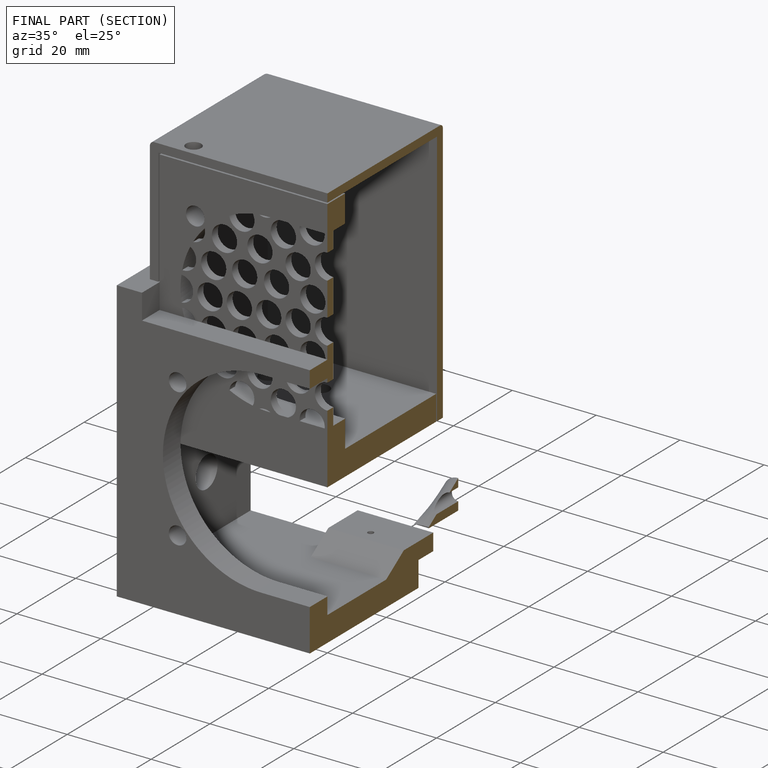
[diagram: finished part — half-section view (interior)]
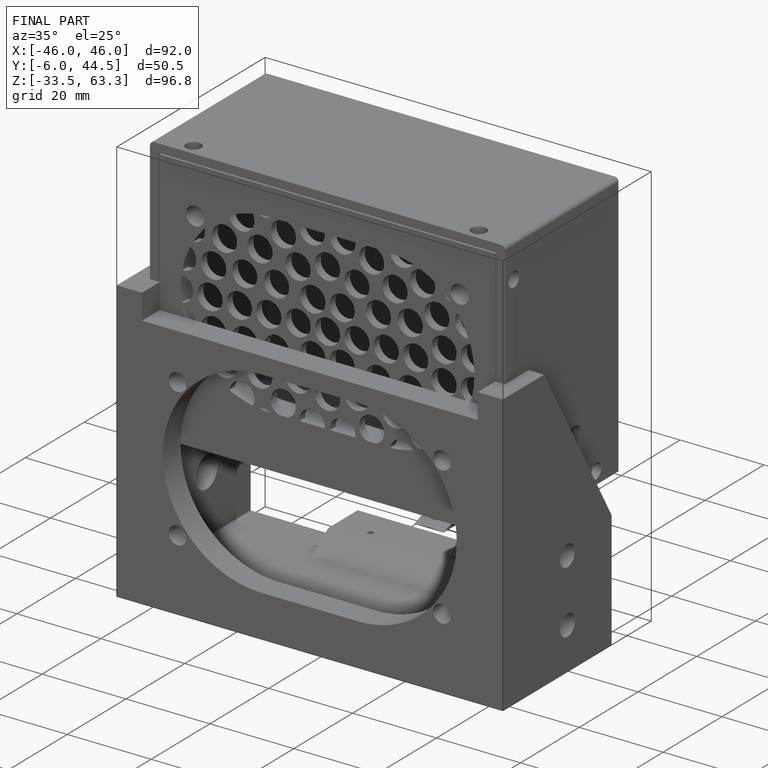
[diagram: finished part — iso view with bounding-box wireframe]
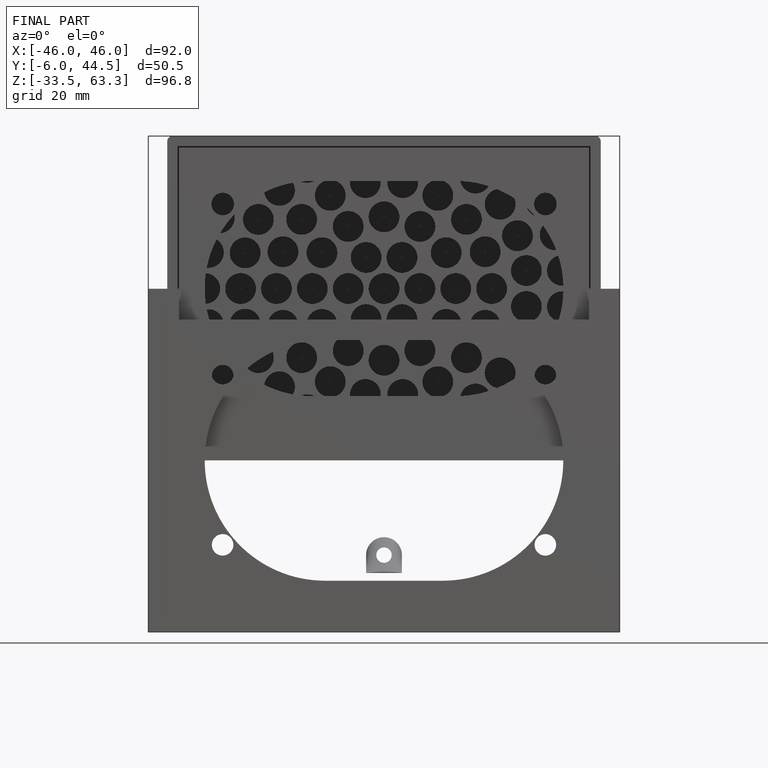
[diagram: finished part — front view with bounding-box wireframe]
